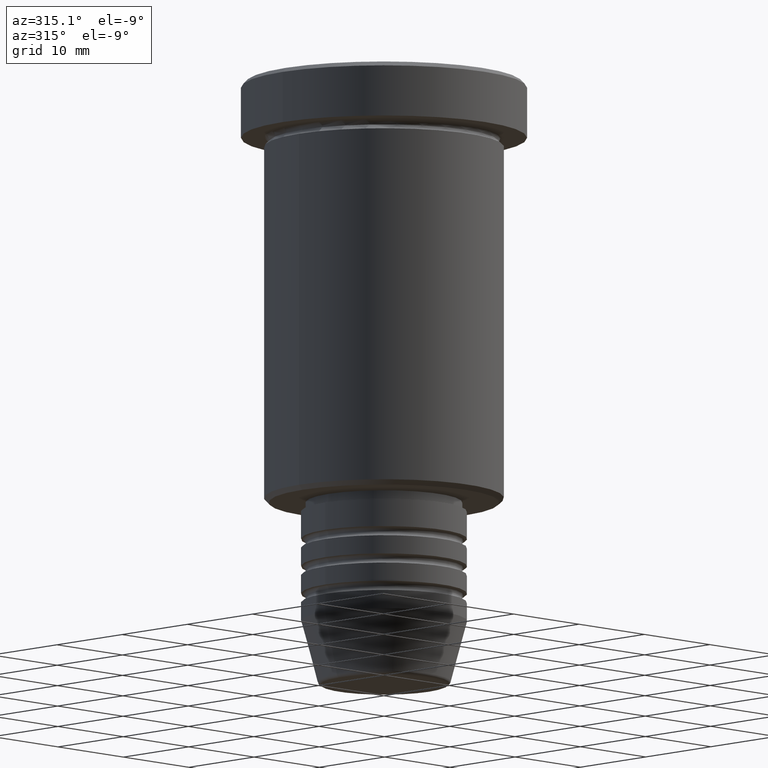
[diagram: clean part render]
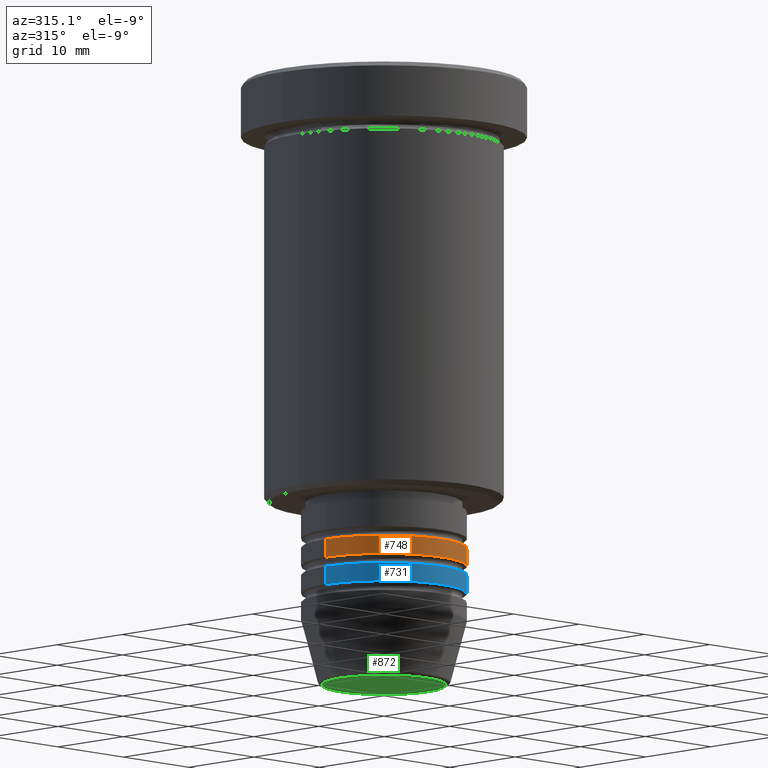
[diagram: same view with three faces highlighted in distinct colors, each labeled with its STEP entity id]
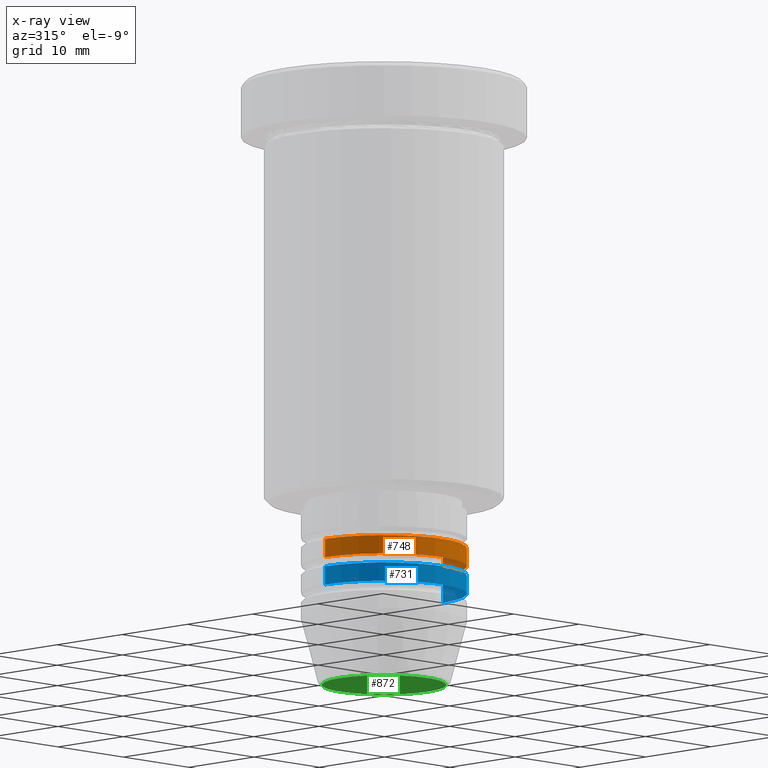
[diagram: x-ray of the same camera — body ghosted, the three highlighted faces saturated]
A machine part, auxiliary view with three faces highlighted in distinct colors.
The next image is the same camera in x-ray (body ghosted, the three faces saturated) — at least one of them is partly hidden behind the body in this view.
Their STEP definitions:

[orange] entity #748 — the highlighted cylindrical surface (partial cylindrical patch) has radius 9 mm, axis along (-0, -0, 1).
#6 = DIRECTION ( 'NONE',  ( -0.000000000000000000, -0.000000000000000000, 1.000000000000000000 ) ) ;
#9 = CIRCLE ( 'NONE', #83, 9.000000000000000000 ) ;
#11 = VECTOR ( 'NONE', #169, 1000.000000000000000 ) ;
#55 = ORIENTED_EDGE ( 'NONE', *, *, #688, .F. ) ;
#73 = CARTESIAN_POINT ( 'NONE',  ( -9.000000000000000000, 1.102182119232617714E-15, -50.99999999999997868 ) ) ;
#83 = AXIS2_PLACEMENT_3D ( 'NONE', #767, #521, #873 ) ;
#95 = DIRECTION ( 'NONE',  ( 1.000000000000000000, 0.000000000000000000, 0.000000000000000000 ) ) ;
#110 = CARTESIAN_POINT ( 'NONE',  ( 9.000000000000000000, 0.000000000000000000, -52.99999999999997868 ) ) ;
#169 = DIRECTION ( 'NONE',  ( -0.000000000000000000, -0.000000000000000000, 1.000000000000000000 ) ) ;
#181 = DIRECTION ( 'NONE',  ( 1.000000000000000000, 0.000000000000000000, 0.000000000000000000 ) ) ;
#237 = DIRECTION ( 'NONE',  ( -0.000000000000000000, -0.000000000000000000, 1.000000000000000000 ) ) ;
#275 = LINE ( 'NONE', #825, #11 ) ;
#368 = CARTESIAN_POINT ( 'NONE',  ( 0.000000000000000000, 0.000000000000000000, -50.99999999999997868 ) ) ;
#402 = VERTEX_POINT ( 'NONE', #110 ) ;
#436 = VECTOR ( 'NONE', #237, 1000.000000000000000 ) ;
#452 = CYLINDRICAL_SURFACE ( 'NONE', #888, 9.000000000000000000 ) ;
#460 = CARTESIAN_POINT ( 'NONE',  ( -9.000000000000000000, 1.102182119232617714E-15, -52.99999999999997868 ) ) ;
#491 = ORIENTED_EDGE ( 'NONE', *, *, #718, .T. ) ;
#496 = VERTEX_POINT ( 'NONE', #1113 ) ;
#498 = EDGE_LOOP ( 'NONE', ( #1168, #764, #491, #55 ) ) ;
#517 = EDGE_CURVE ( 'NONE', #724, #402, #9, .T. ) ;
#521 = DIRECTION ( 'NONE',  ( -0.000000000000000000, -0.000000000000000000, 1.000000000000000000 ) ) ;
#556 = FACE_OUTER_BOUND ( 'NONE', #498, .T. ) ;
#609 = LINE ( 'NONE', #780, #436 ) ;
#621 = AXIS2_PLACEMENT_3D ( 'NONE', #368, #6, #95 ) ;
#659 = EDGE_CURVE ( 'NONE', #724, #1067, #609, .T. ) ;
#688 = EDGE_CURVE ( 'NONE', #1067, #496, #755, .T. ) ;
#718 = EDGE_CURVE ( 'NONE', #402, #496, #275, .T. ) ;
#724 = VERTEX_POINT ( 'NONE', #460 ) ;
#748 = ADVANCED_FACE ( 'NONE', ( #556 ), #452, .T. ) ;
#755 = CIRCLE ( 'NONE', #621, 9.000000000000000000 ) ;
#764 = ORIENTED_EDGE ( 'NONE', *, *, #517, .T. ) ;
#767 = CARTESIAN_POINT ( 'NONE',  ( 0.000000000000000000, 0.000000000000000000, -52.99999999999997868 ) ) ;
#780 = CARTESIAN_POINT ( 'NONE',  ( -9.000000000000000000, 1.102182119232617714E-15, 0.000000000000000000 ) ) ;
#814 = DIRECTION ( 'NONE',  ( -0.000000000000000000, -0.000000000000000000, 1.000000000000000000 ) ) ;
#825 = CARTESIAN_POINT ( 'NONE',  ( 9.000000000000000000, 0.000000000000000000, 0.000000000000000000 ) ) ;
#873 = DIRECTION ( 'NONE',  ( 1.000000000000000000, 0.000000000000000000, 0.000000000000000000 ) ) ;
#888 = AXIS2_PLACEMENT_3D ( 'NONE', #913, #814, #181 ) ;
#913 = CARTESIAN_POINT ( 'NONE',  ( 0.000000000000000000, 0.000000000000000000, 0.000000000000000000 ) ) ;
#1067 = VERTEX_POINT ( 'NONE', #73 ) ;
#1113 = CARTESIAN_POINT ( 'NONE',  ( 9.000000000000000000, 0.000000000000000000, -50.99999999999997868 ) ) ;
#1168 = ORIENTED_EDGE ( 'NONE', *, *, #659, .F. ) ;

[blue] entity #731 — the highlighted cylindrical surface (partial cylindrical patch) has radius 9 mm, axis along (-0, -0, 1).
#25 = AXIS2_PLACEMENT_3D ( 'NONE', #71, #49, #422 ) ;
#39 = VERTEX_POINT ( 'NONE', #1036 ) ;
#48 = CARTESIAN_POINT ( 'NONE',  ( 0.000000000000000000, 0.000000000000000000, -55.99999999999997868 ) ) ;
#49 = DIRECTION ( 'NONE',  ( -0.000000000000000000, -0.000000000000000000, 1.000000000000000000 ) ) ;
#71 = CARTESIAN_POINT ( 'NONE',  ( 0.000000000000000000, 0.000000000000000000, -53.99999999999997868 ) ) ;
#79 = EDGE_CURVE ( 'NONE', #412, #39, #982, .T. ) ;
#202 = CIRCLE ( 'NONE', #907, 9.000000000000000000 ) ;
#209 = EDGE_LOOP ( 'NONE', ( #743, #1147, #318, #229 ) ) ;
#229 = ORIENTED_EDGE ( 'NONE', *, *, #79, .F. ) ;
#249 = DIRECTION ( 'NONE',  ( -0.000000000000000000, -0.000000000000000000, 1.000000000000000000 ) ) ;
#272 = CARTESIAN_POINT ( 'NONE',  ( 9.000000000000000000, 0.000000000000000000, 0.000000000000000000 ) ) ;
#285 = CARTESIAN_POINT ( 'NONE',  ( 9.000000000000000000, 0.000000000000000000, -55.99999999999997868 ) ) ;
#289 = LINE ( 'NONE', #389, #451 ) ;
#308 = EDGE_CURVE ( 'NONE', #313, #39, #461, .T. ) ;
#313 = VERTEX_POINT ( 'NONE', #285 ) ;
#317 = VECTOR ( 'NONE', #807, 1000.000000000000000 ) ;
#318 = ORIENTED_EDGE ( 'NONE', *, *, #308, .T. ) ;
#389 = CARTESIAN_POINT ( 'NONE',  ( -9.000000000000000000, 1.102182119232617714E-15, 0.000000000000000000 ) ) ;
#412 = VERTEX_POINT ( 'NONE', #1041 ) ;
#422 = DIRECTION ( 'NONE',  ( 1.000000000000000000, 0.000000000000000000, 0.000000000000000000 ) ) ;
#451 = VECTOR ( 'NONE', #747, 1000.000000000000000 ) ;
#461 = LINE ( 'NONE', #272, #317 ) ;
#494 = EDGE_CURVE ( 'NONE', #751, #412, #289, .T. ) ;
#516 = DIRECTION ( 'NONE',  ( 1.000000000000000000, 0.000000000000000000, 0.000000000000000000 ) ) ;
#551 = DIRECTION ( 'NONE',  ( 1.000000000000000000, 0.000000000000000000, 0.000000000000000000 ) ) ;
#622 = FACE_OUTER_BOUND ( 'NONE', #209, .T. ) ;
#637 = EDGE_CURVE ( 'NONE', #751, #313, #202, .T. ) ;
#722 = DIRECTION ( 'NONE',  ( -0.000000000000000000, -0.000000000000000000, 1.000000000000000000 ) ) ;
#731 = ADVANCED_FACE ( 'NONE', ( #622 ), #997, .T. ) ;
#743 = ORIENTED_EDGE ( 'NONE', *, *, #494, .F. ) ;
#747 = DIRECTION ( 'NONE',  ( -0.000000000000000000, -0.000000000000000000, 1.000000000000000000 ) ) ;
#751 = VERTEX_POINT ( 'NONE', #988 ) ;
#807 = DIRECTION ( 'NONE',  ( -0.000000000000000000, -0.000000000000000000, 1.000000000000000000 ) ) ;
#907 = AXIS2_PLACEMENT_3D ( 'NONE', #48, #249, #516 ) ;
#945 = AXIS2_PLACEMENT_3D ( 'NONE', #1011, #722, #551 ) ;
#982 = CIRCLE ( 'NONE', #25, 9.000000000000000000 ) ;
#988 = CARTESIAN_POINT ( 'NONE',  ( -9.000000000000000000, 1.102182119232617714E-15, -55.99999999999997868 ) ) ;
#997 = CYLINDRICAL_SURFACE ( 'NONE', #945, 9.000000000000000000 ) ;
#1011 = CARTESIAN_POINT ( 'NONE',  ( 0.000000000000000000, 0.000000000000000000, 0.000000000000000000 ) ) ;
#1036 = CARTESIAN_POINT ( 'NONE',  ( 9.000000000000000000, 0.000000000000000000, -53.99999999999997868 ) ) ;
#1041 = CARTESIAN_POINT ( 'NONE',  ( -9.000000000000000000, 1.102182119232617714E-15, -53.99999999999997868 ) ) ;
#1147 = ORIENTED_EDGE ( 'NONE', *, *, #637, .T. ) ;

[green] entity #872 — the highlighted planar face has unit normal (0, -0, 1).
#28 = CIRCLE ( 'NONE', #278, 6.740692158992653837 ) ;
#33 = VERTEX_POINT ( 'NONE', #768 ) ;
#57 = CARTESIAN_POINT ( 'NONE',  ( 0.000000000000000000, 0.000000000000000000, -66.00000000000000000 ) ) ;
#84 = AXIS2_PLACEMENT_3D ( 'NONE', #206, #122, #1016 ) ;
#89 = DIRECTION ( 'NONE',  ( 0.000000000000000000, 0.000000000000000000, -1.000000000000000000 ) ) ;
#122 = DIRECTION ( 'NONE',  ( 0.000000000000000000, -0.000000000000000000, 1.000000000000000000 ) ) ;
#172 = EDGE_LOOP ( 'NONE', ( #916, #535 ) ) ;
#175 = CARTESIAN_POINT ( 'NONE',  ( 0.000000000000000000, 0.000000000000000000, -66.00000000000000000 ) ) ;
#206 = CARTESIAN_POINT ( 'NONE',  ( 0.000000000000000000, 0.000000000000000000, -66.00000000000000000 ) ) ;
#278 = AXIS2_PLACEMENT_3D ( 'NONE', #175, #89, #441 ) ;
#405 = FACE_OUTER_BOUND ( 'NONE', #172, .T. ) ;
#437 = DIRECTION ( 'NONE',  ( 0.000000000000000000, 0.000000000000000000, -1.000000000000000000 ) ) ;
#441 = DIRECTION ( 'NONE',  ( 1.000000000000000000, 0.000000000000000000, 0.000000000000000000 ) ) ;
#484 = VERTEX_POINT ( 'NONE', #845 ) ;
#535 = ORIENTED_EDGE ( 'NONE', *, *, #557, .T. ) ;
#557 = EDGE_CURVE ( 'NONE', #33, #484, #733, .T. ) ;
#580 = AXIS2_PLACEMENT_3D ( 'NONE', #57, #437, #1161 ) ;
#733 = CIRCLE ( 'NONE', #580, 6.740692158992653837 ) ;
#768 = CARTESIAN_POINT ( 'NONE',  ( -6.740692158992653837, 8.550696569392682723E-16, -66.00000000000000000 ) ) ;
#772 = EDGE_CURVE ( 'NONE', #484, #33, #28, .T. ) ;
#845 = CARTESIAN_POINT ( 'NONE',  ( 6.740692158992653837, 0.000000000000000000, -66.00000000000000000 ) ) ;
#855 = PLANE ( 'NONE',  #84 ) ;
#872 = ADVANCED_FACE ( 'NONE', ( #405 ), #855, .F. ) ;
#916 = ORIENTED_EDGE ( 'NONE', *, *, #772, .T. ) ;
#1016 = DIRECTION ( 'NONE',  ( 1.000000000000000000, 0.000000000000000000, 0.000000000000000000 ) ) ;
#1161 = DIRECTION ( 'NONE',  ( 1.000000000000000000, 0.000000000000000000, 0.000000000000000000 ) ) ;